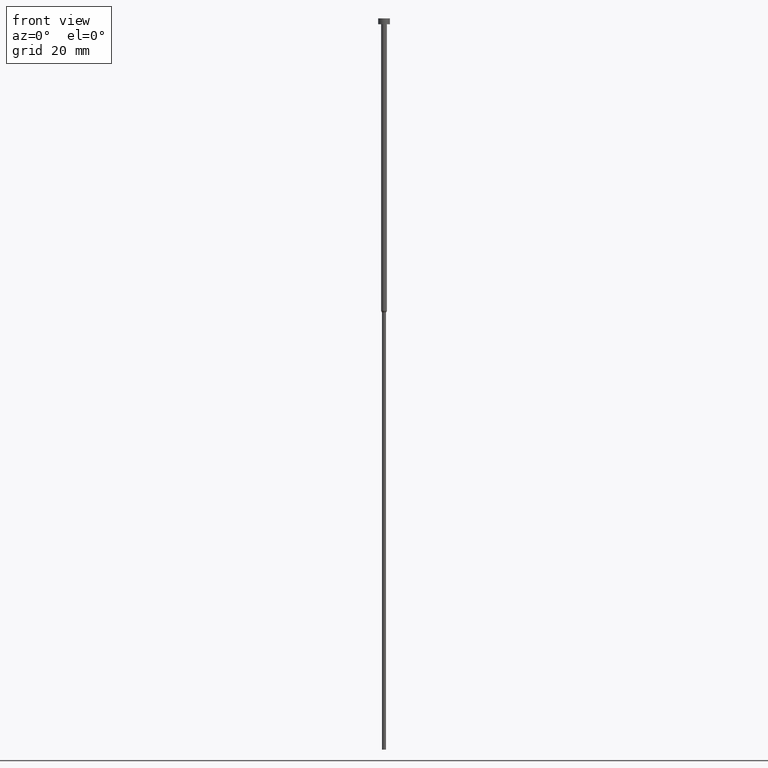
[diagram: clean part render]
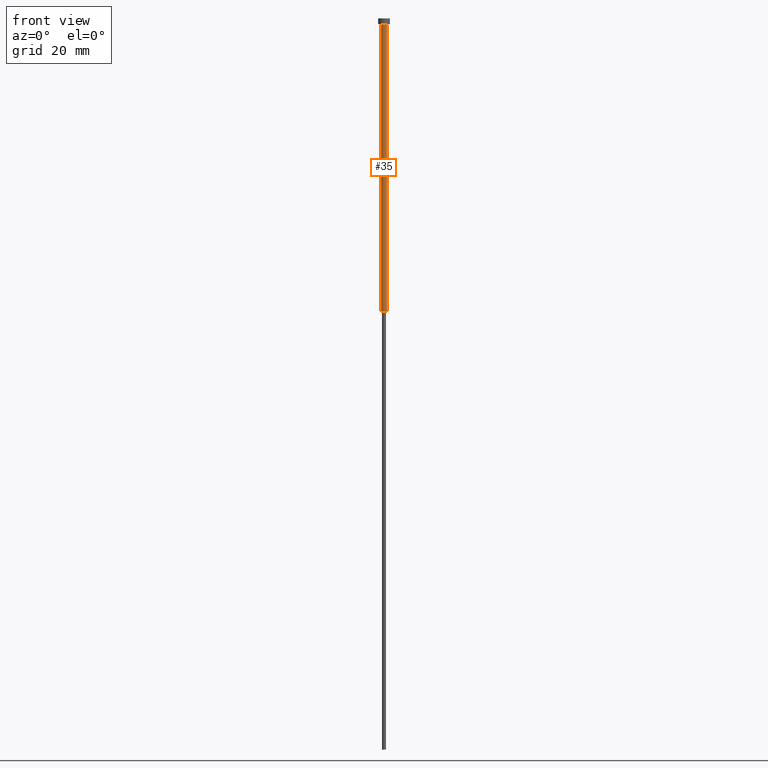
[diagram: same view with one face highlighted and labeled with its STEP entity id]
A machine part, front view. The second image highlights one B-rep face of the part: STEP entity #35.
In plain terms, the highlighted cylindrical surface (edge-blend (fillet) strip) has radius 1 mm, axis along (-0, -0, 1).
Its self-contained STEP definition (entity closure, byte-faithful):
#2 = VERTEX_POINT ( 'NONE', #141 ) ;
#5 = LINE ( 'NONE', #231, #17 ) ;
#7 = EDGE_CURVE ( 'NONE', #2, #76, #5, .T. ) ;
#17 = VECTOR ( 'NONE', #263, 1000.000000000000000 ) ;
#27 = AXIS2_PLACEMENT_3D ( 'NONE', #205, #316, #60 ) ;
#35 = ADVANCED_FACE ( 'NONE', ( #320 ), #277, .T. ) ;
#56 = EDGE_CURVE ( 'NONE', #286, #76, #109, .T. ) ;
#60 = DIRECTION ( 'NONE',  ( 1.000000000000000000, 0.000000000000000000, 0.000000000000000000 ) ) ;
#76 = VERTEX_POINT ( 'NONE', #90 ) ;
#90 = CARTESIAN_POINT ( 'NONE',  ( 1.000000000000003553, 0.000000000000000000, -2.000000000000000444 ) ) ;
#94 = EDGE_CURVE ( 'NONE', #208, #286, #118, .T. ) ;
#98 = AXIS2_PLACEMENT_3D ( 'NONE', #324, #300, #349 ) ;
#109 = CIRCLE ( 'NONE', #200, 1.000000000000003553 ) ;
#111 = ORIENTED_EDGE ( 'NONE', *, *, #94, .F. ) ;
#118 = LINE ( 'NONE', #210, #193 ) ;
#129 = CIRCLE ( 'NONE', #27, 1.000000000000003109 ) ;
#133 = ORIENTED_EDGE ( 'NONE', *, *, #56, .F. ) ;
#141 = CARTESIAN_POINT ( 'NONE',  ( 1.000000000000003109, 0.000000000000000000, -100.0000000000000000 ) ) ;
#150 = CARTESIAN_POINT ( 'NONE',  ( 0.000000000000000000, 0.000000000000000000, -2.000000000000000444 ) ) ;
#164 = EDGE_CURVE ( 'NONE', #208, #2, #129, .T. ) ;
#182 = CARTESIAN_POINT ( 'NONE',  ( -1.000000000000003109, 1.224646799147356905E-16, -100.0000000000000000 ) ) ;
#183 = EDGE_LOOP ( 'NONE', ( #111, #211, #343, #133 ) ) ;
#185 = CARTESIAN_POINT ( 'NONE',  ( -1.000000000000003553, 1.224646799147357398E-16, -2.000000000000000444 ) ) ;
#193 = VECTOR ( 'NONE', #342, 1000.000000000000000 ) ;
#200 = AXIS2_PLACEMENT_3D ( 'NONE', #150, #289, #273 ) ;
#205 = CARTESIAN_POINT ( 'NONE',  ( 0.000000000000000000, 0.000000000000000000, -100.0000000000000000 ) ) ;
#208 = VERTEX_POINT ( 'NONE', #182 ) ;
#210 = CARTESIAN_POINT ( 'NONE',  ( -1.000000000000003331, 1.224646799147357151E-16, 0.000000000000000000 ) ) ;
#211 = ORIENTED_EDGE ( 'NONE', *, *, #164, .T. ) ;
#231 = CARTESIAN_POINT ( 'NONE',  ( 1.000000000000003331, 0.000000000000000000, 0.000000000000000000 ) ) ;
#263 = DIRECTION ( 'NONE',  ( -0.000000000000000000, -0.000000000000000000, 1.000000000000000000 ) ) ;
#273 = DIRECTION ( 'NONE',  ( 1.000000000000000000, 0.000000000000000000, 0.000000000000000000 ) ) ;
#277 = CYLINDRICAL_SURFACE ( 'NONE', #98, 1.000000000000003331 ) ;
#286 = VERTEX_POINT ( 'NONE', #185 ) ;
#289 = DIRECTION ( 'NONE',  ( -0.000000000000000000, -0.000000000000000000, 1.000000000000000000 ) ) ;
#300 = DIRECTION ( 'NONE',  ( -0.000000000000000000, -0.000000000000000000, 1.000000000000000000 ) ) ;
#316 = DIRECTION ( 'NONE',  ( -0.000000000000000000, -0.000000000000000000, 1.000000000000000000 ) ) ;
#320 = FACE_OUTER_BOUND ( 'NONE', #183, .T. ) ;
#324 = CARTESIAN_POINT ( 'NONE',  ( 0.000000000000000000, 0.000000000000000000, 0.000000000000000000 ) ) ;
#342 = DIRECTION ( 'NONE',  ( -0.000000000000000000, -0.000000000000000000, 1.000000000000000000 ) ) ;
#343 = ORIENTED_EDGE ( 'NONE', *, *, #7, .T. ) ;
#349 = DIRECTION ( 'NONE',  ( 1.000000000000000000, 0.000000000000000000, 0.000000000000000000 ) ) ;